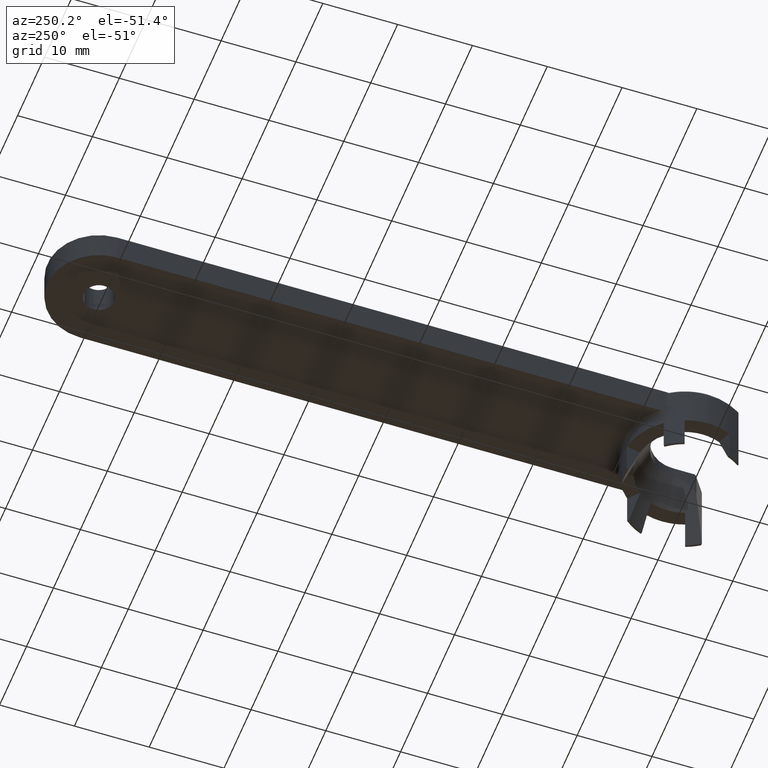
[diagram: clean part render]
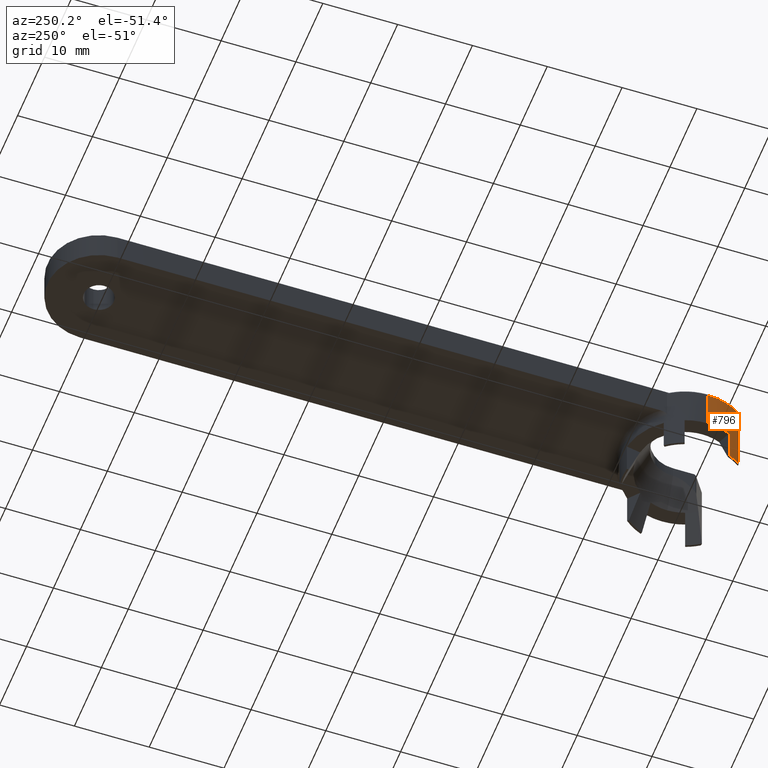
[diagram: same view with one face highlighted and labeled with its STEP entity id]
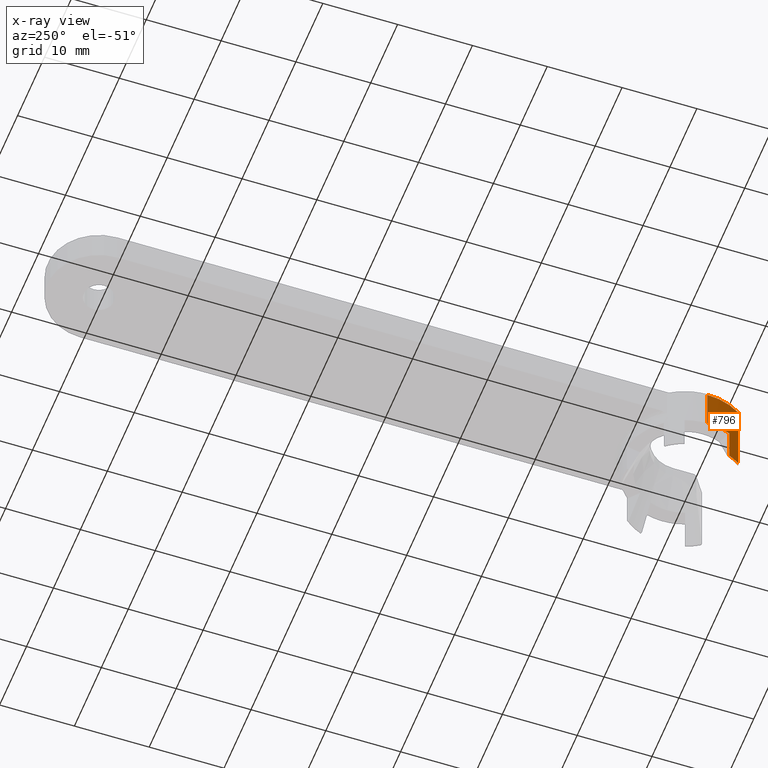
[diagram: x-ray of the same camera — body ghosted, the highlighted face saturated]
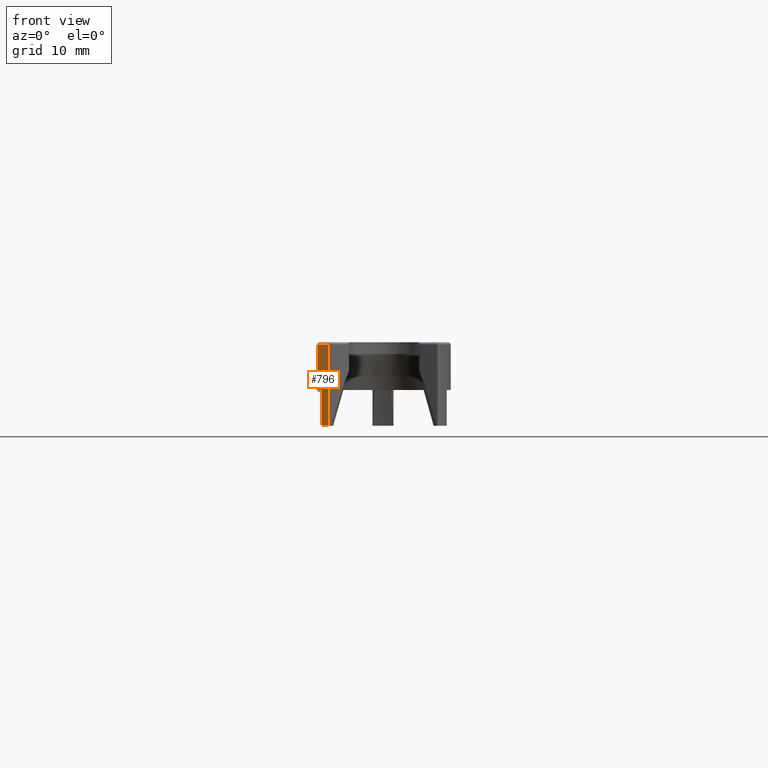
[diagram: same view with one face highlighted and labeled with its STEP entity id]
A machine part, auxiliary view. The second image highlights one B-rep face of the part: STEP entity #796.
The next image is the same camera in x-ray: the body ghosted, the highlighted face saturated — about 0% of this face is hidden behind the body in this view.
A second angle (front view) of the same face is appended — the face is thin or edge-on in the first view.
In plain terms, the highlighted cylindrical surface (partial cylindrical patch) has radius 8.4 mm, axis along (0, -0, 1).
Its self-contained STEP definition (entity closure, byte-faithful):
#4 = FACE_OUTER_BOUND ( 'NONE', #468, .T. ) ;
#64 = DIRECTION ( 'NONE',  ( 0.0000000000000000000, -0.0000000000000000000, 1.000000000000000000 ) ) ;
#78 = CARTESIAN_POINT ( 'NONE',  ( -8.400000000000000400, 1.028703311283776800E-015, -5.999999995799997000 ) ) ;
#99 = DIRECTION ( 'NONE',  ( -0.0000000000000000000, 0.0000000000000000000, -1.000000000000000000 ) ) ;
#124 = CARTESIAN_POINT ( 'NONE',  ( -7.054602160273169900, -4.559889073241710600, -10.49999999999999500 ) ) ;
#128 = CARTESIAN_POINT ( 'NONE',  ( 0.0000000000000000000, 0.0000000000000000000, -10.50000000000000000 ) ) ;
#201 = LINE ( 'NONE', #1258, #914 ) ;
#205 = DIRECTION ( 'NONE',  ( 1.000000000000000000, 0.0000000000000000000, 0.0000000000000000000 ) ) ;
#208 = CARTESIAN_POINT ( 'NONE',  ( -8.400000000192935800, -1.722868799528782000E-009, -0.2999999999037157300 ) ) ;
#245 = ORIENTED_EDGE ( 'NONE', *, *, #501, .F. ) ;
#311 = AXIS2_PLACEMENT_3D ( 'NONE', #1055, #715, #1617 ) ;
#332 = VERTEX_POINT ( 'NONE', #1282 ) ;
#392 = VECTOR ( 'NONE', #1782, 1000.000000000000000 ) ;
#402 = DIRECTION ( 'NONE',  ( 0.0000000000000000000, -0.0000000000000000000, 1.000000000000000000 ) ) ;
#449 = EDGE_CURVE ( 'NONE', #778, #1589, #716, .T. ) ;
#468 = EDGE_LOOP ( 'NONE', ( #1630, #623, #1174, #1104, #1798, #245 ) ) ;
#498 = CARTESIAN_POINT ( 'NONE',  ( 0.0000000000000000000, 0.0000000000000000000, -5.999999995799997000 ) ) ;
#501 = EDGE_CURVE ( 'NONE', #637, #332, #1779, .T. ) ;
#623 = ORIENTED_EDGE ( 'NONE', *, *, #684, .F. ) ;
#637 = VERTEX_POINT ( 'NONE', #208 ) ;
#652 = CARTESIAN_POINT ( 'NONE',  ( -7.799836386749503500, -3.118100758464755100, -5.999999997899999800 ) ) ;
#684 = EDGE_CURVE ( 'NONE', #1589, #1762, #1600, .T. ) ;
#685 = DIRECTION ( 'NONE',  ( 1.000000000000000000, 0.0000000000000000000, 0.0000000000000000000 ) ) ;
#693 = AXIS2_PLACEMENT_3D ( 'NONE', #1788, #1668, #205 ) ;
#715 = DIRECTION ( 'NONE',  ( 0.0000000000000000000, -0.0000000000000000000, 1.000000000000000000 ) ) ;
#716 = LINE ( 'NONE', #1248, #392 ) ;
#778 = VERTEX_POINT ( 'NONE', #1358 ) ;
#792 = DIRECTION ( 'NONE',  ( 1.000000000000000000, 3.552713678800500900E-015, 0.0000000000000000000 ) ) ;
#795 = CARTESIAN_POINT ( 'NONE',  ( -8.400000000000000400, 1.028703311283776800E-015, -10.50000000000000000 ) ) ;
#796 = ADVANCED_FACE ( 'NONE', ( #4 ), #1717, .T. ) ;
#865 = VECTOR ( 'NONE', #64, 1000.000000000000000 ) ;
#914 = VECTOR ( 'NONE', #1687, 1000.000000000000000 ) ;
#995 = VERTEX_POINT ( 'NONE', #124 ) ;
#1055 = CARTESIAN_POINT ( 'NONE',  ( 0.0000000000000000000, 0.0000000000000000000, -0.3000000000000016500 ) ) ;
#1070 = AXIS2_PLACEMENT_3D ( 'NONE', #498, #99, #792 ) ;
#1104 = ORIENTED_EDGE ( 'NONE', *, *, #1503, .T. ) ;
#1174 = ORIENTED_EDGE ( 'NONE', *, *, #449, .F. ) ;
#1212 = AXIS2_PLACEMENT_3D ( 'NONE', #128, #402, #685 ) ;
#1248 = CARTESIAN_POINT ( 'NONE',  ( -7.799836386165378800, -3.118100759925925800, -5.400000000000000400 ) ) ;
#1258 = CARTESIAN_POINT ( 'NONE',  ( -7.054602160284240100, -4.559889073224582900, -5.400000000000000400 ) ) ;
#1270 = LINE ( 'NONE', #795, #865 ) ;
#1282 = CARTESIAN_POINT ( 'NONE',  ( -7.054602160141624400, -4.559889072930738900, -0.2999999999037060700 ) ) ;
#1295 = CIRCLE ( 'NONE', #693, 8.400000000000000400 ) ;
#1358 = CARTESIAN_POINT ( 'NONE',  ( -7.799836386554794400, -3.118100758951812200, -10.49999999999999500 ) ) ;
#1503 = EDGE_CURVE ( 'NONE', #778, #995, #1295, .T. ) ;
#1589 = VERTEX_POINT ( 'NONE', #652 ) ;
#1600 = CIRCLE ( 'NONE', #1070, 8.400000000000000400 ) ;
#1617 = DIRECTION ( 'NONE',  ( 1.000000000000000000, 0.0000000000000000000, 0.0000000000000000000 ) ) ;
#1630 = ORIENTED_EDGE ( 'NONE', *, *, #1767, .F. ) ;
#1668 = DIRECTION ( 'NONE',  ( 0.0000000000000000000, -0.0000000000000000000, 1.000000000000000000 ) ) ;
#1687 = DIRECTION ( 'NONE',  ( -0.0000000000000000000, -0.0000000000000000000, -1.000000000000000000 ) ) ;
#1717 = CYLINDRICAL_SURFACE ( 'NONE', #1212, 8.400000000000000400 ) ;
#1735 = EDGE_CURVE ( 'NONE', #332, #995, #201, .T. ) ;
#1762 = VERTEX_POINT ( 'NONE', #78 ) ;
#1767 = EDGE_CURVE ( 'NONE', #1762, #637, #1270, .T. ) ;
#1779 = CIRCLE ( 'NONE', #311, 8.400000000000000400 ) ;
#1782 = DIRECTION ( 'NONE',  ( 0.0000000000000000000, 0.0000000000000000000, 1.000000000000000000 ) ) ;
#1788 = CARTESIAN_POINT ( 'NONE',  ( 0.0000000000000000000, 0.0000000000000000000, -10.49999999999999500 ) ) ;
#1798 = ORIENTED_EDGE ( 'NONE', *, *, #1735, .F. ) ;